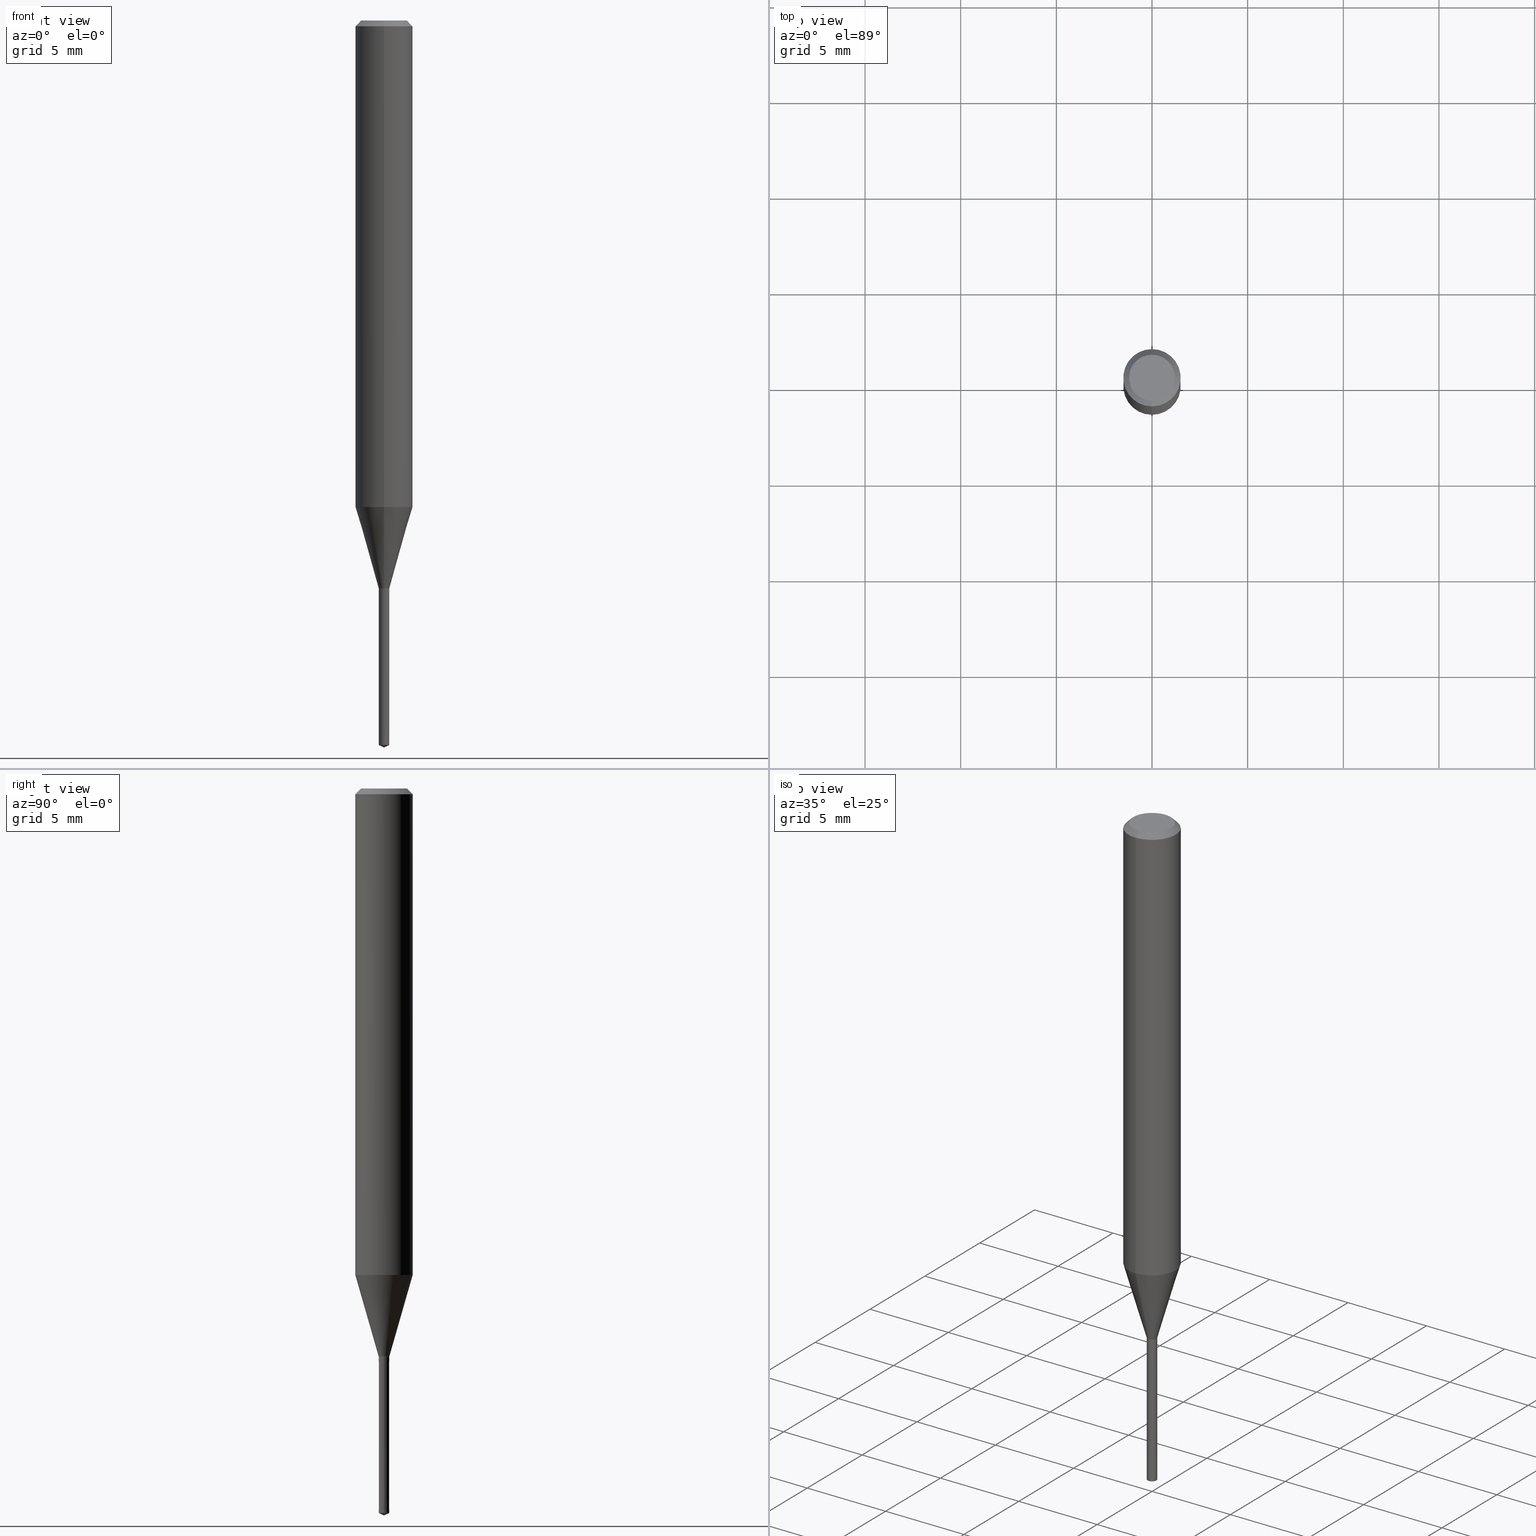
[diagram: canonical four-view strip — front | top / right | iso, engineering-drawing reading convention]
A machine part, canonical four-view strip (front | top / right | iso — engineering-drawing reading convention). The complete STEP part file that produces these views, byte-faithful:
ISO-10303-21;
HEADER;
FILE_DESCRIPTION(('no description'),'unknown implementation level');
FILE_NAME('UTDLX2055-083-Huellk.stp','  ',('CIMSOURCE GmbH'),('CADClick - KiM GmbH - www.kimweb.de'),'unknown preprocess','ACIS','unknown authorization');
FILE_SCHEMA(('automotive_design'));
ENDSEC;
DATA;
#1=MECHANICAL_DESIGN_GEOMETRIC_PRESENTATION_REPRESENTATION(' ',(#14,#15,#16,#17,#18,#19,#20,#21,#22,#23,#24,#25,#26,#27,#28,#29,#30,#31,#32,#33,#34,#35,#36,#37,#38,#39,#40,#41,#42,#43,#44,#45,#46,#47,#48,#49,#50,#51,#52,#53,#54,#55,#56,#57,#58,#59,#60,#61,#62,#63,#64,#65,#66,#67,#68,#69,#70,#71),#10);
#2=PRODUCT_DEFINITION_CONTEXT('',#72,'design');
#3=APPLICATION_PROTOCOL_DEFINITION('INTERNATIONAL STANDARD','automotive_design',1994,#72);
#4=PRODUCT_CATEGORY_RELATIONSHIP('NONE','NONE',#73,#74);
#5=SHAPE_DEFINITION_REPRESENTATION(#75,#76);
#6=PRODUCT_DEFINITION_CONTEXT('',#77,'design');
#7=APPLICATION_PROTOCOL_DEFINITION('INTERNATIONAL STANDARD','automotive_design',1994,#77);
#8=PRODUCT_CATEGORY_RELATIONSHIP('NONE','NONE',#78,#79);
#9=SHAPE_DEFINITION_REPRESENTATION(#80,#81);
#10= (GEOMETRIC_REPRESENTATION_CONTEXT(3)GLOBAL_UNCERTAINTY_ASSIGNED_CONTEXT((#84))GLOBAL_UNIT_ASSIGNED_CONTEXT((#86,#87,#88))REPRESENTATION_CONTEXT('NONE','WORKSPACE'));
#14=STYLED_ITEM('',(#90),#91);
#15=STYLED_ITEM('',(#92),#93);
#16=STYLED_ITEM('',(#94),#95);
#17=STYLED_ITEM('',(#96),#97);
#18=STYLED_ITEM('',(#98),#99);
#19=STYLED_ITEM('',(#100),#101);
#20=STYLED_ITEM('',(#102),#103);
#21=STYLED_ITEM('',(#104),#105);
#22=STYLED_ITEM('',(#106),#107);
#23=STYLED_ITEM('',(#108),#109);
#24=STYLED_ITEM('',(#110),#111);
#25=STYLED_ITEM('',(#112),#113);
#26=STYLED_ITEM('',(#114),#115);
#27=STYLED_ITEM('',(#116),#117);
#28=STYLED_ITEM('',(#118),#119);
#29=STYLED_ITEM('',(#120),#121);
#30=STYLED_ITEM('',(#122),#123);
#31=STYLED_ITEM('',(#124),#125);
#32=STYLED_ITEM('',(#126),#127);
#33=STYLED_ITEM('',(#128),#129);
#34=STYLED_ITEM('',(#130),#131);
#35=STYLED_ITEM('',(#132),#133);
#36=STYLED_ITEM('',(#134),#135);
#37=STYLED_ITEM('',(#136),#137);
#38=STYLED_ITEM('',(#138),#139);
#39=STYLED_ITEM('',(#140),#141);
#40=STYLED_ITEM('',(#142),#143);
#41=STYLED_ITEM('',(#144),#145);
#42=STYLED_ITEM('',(#146),#147);
#43=STYLED_ITEM('',(#148),#149);
#44=STYLED_ITEM('',(#150),#151);
#45=STYLED_ITEM('',(#152),#153);
#46=STYLED_ITEM('',(#154),#155);
#47=STYLED_ITEM('',(#156),#157);
#48=STYLED_ITEM('',(#158),#159);
#49=STYLED_ITEM('',(#160),#161);
#50=STYLED_ITEM('',(#162),#163);
#51=STYLED_ITEM('',(#164),#165);
#52=STYLED_ITEM('',(#166),#167);
#53=STYLED_ITEM('',(#168),#169);
#54=STYLED_ITEM('',(#170),#171);
#55=STYLED_ITEM('',(#172),#173);
#56=STYLED_ITEM('',(#174),#175);
#57=STYLED_ITEM('',(#176),#177);
#58=STYLED_ITEM('',(#178),#179);
#59=STYLED_ITEM('',(#180),#181);
#60=STYLED_ITEM('',(#182),#183);
#61=STYLED_ITEM('',(#184),#185);
#62=STYLED_ITEM('',(#186),#187);
#63=STYLED_ITEM('',(#188),#189);
#64=STYLED_ITEM('',(#190),#191);
#65=STYLED_ITEM('',(#192),#193);
#66=STYLED_ITEM('',(#194),#195);
#67=STYLED_ITEM('',(#196),#197);
#68=STYLED_ITEM('',(#198),#199);
#69=STYLED_ITEM('',(#200),#201);
#70=STYLED_ITEM('',(#202),#203);
#71=STYLED_ITEM('',(#204),#205);
#72=APPLICATION_CONTEXT(' ');
#73=PRODUCT_CATEGORY('part','NONE');
#74=PRODUCT_RELATED_PRODUCT_CATEGORY('detail',' ',(#206));
#75=PRODUCT_DEFINITION_SHAPE('NONE','NONE',#207);
#76=ADVANCED_BREP_SHAPE_REPRESENTATION('1',(#111,#208),#10);
#77=APPLICATION_CONTEXT(' ');
#78=PRODUCT_CATEGORY('part','NONE');
#79=PRODUCT_RELATED_PRODUCT_CATEGORY('detail',' ',(#209));
#80=PRODUCT_DEFINITION_SHAPE('NONE','NONE',#210);
#81=ADVANCED_BREP_SHAPE_REPRESENTATION('2',(#187,#211),#10);
#84=UNCERTAINTY_MEASURE_WITH_UNIT(LENGTH_MEASURE(1.0E-006),#86,'','');
#86= (CONVERSION_BASED_UNIT('MILLIMETRE',#214)LENGTH_UNIT()NAMED_UNIT(#217));
#87= (NAMED_UNIT(#219)PLANE_ANGLE_UNIT()SI_UNIT($,.RADIAN.));
#88= (NAMED_UNIT(#219)SOLID_ANGLE_UNIT()SI_UNIT($,.STERADIAN.));
#90=PRESENTATION_STYLE_ASSIGNMENT((#225));
#91=EDGE_CURVE('',#117,#145,#226,.T.);
#92=PRESENTATION_STYLE_ASSIGNMENT((#227));
#93=EDGE_CURVE('',#167,#203,#228,.T.);
#94=PRESENTATION_STYLE_ASSIGNMENT((#229));
#95=EDGE_CURVE('',#139,#105,#230,.T.);
#96=PRESENTATION_STYLE_ASSIGNMENT((#231));
#97=EDGE_CURVE('',#159,#121,#232,.T.);
#98=PRESENTATION_STYLE_ASSIGNMENT((#233));
#99=EDGE_CURVE('',#115,#167,#234,.T.);
#100=PRESENTATION_STYLE_ASSIGNMENT((#235));
#101=VERTEX_POINT('',#236);
#102=PRESENTATION_STYLE_ASSIGNMENT((#237));
#103=EDGE_CURVE('',#115,#151,#238,.T.);
#104=PRESENTATION_STYLE_ASSIGNMENT((#239));
#105=VERTEX_POINT('',#240);
#106=PRESENTATION_STYLE_ASSIGNMENT((#241));
#107=EDGE_CURVE('',#203,#151,#242,.T.);
#108=PRESENTATION_STYLE_ASSIGNMENT((#243));
#109=EDGE_CURVE('',#193,#159,#244,.T.);
#110=PRESENTATION_STYLE_ASSIGNMENT((#245));
#111=MANIFOLD_SOLID_BREP('1',#246);
#112=PRESENTATION_STYLE_ASSIGNMENT((#247));
#113=EDGE_CURVE('',#121,#193,#248,.T.);
#114=PRESENTATION_STYLE_ASSIGNMENT((#249));
#115=VERTEX_POINT('',#250);
#116=PRESENTATION_STYLE_ASSIGNMENT((#251));
#117=VERTEX_POINT('',#252);
#118=PRESENTATION_STYLE_ASSIGNMENT((#253));
#119=ADVANCED_FACE('',(#254),#255,.T.);
#120=PRESENTATION_STYLE_ASSIGNMENT((#256));
#121=VERTEX_POINT('',#257);
#122=PRESENTATION_STYLE_ASSIGNMENT((#258));
#123=ADVANCED_FACE('',(#259),#260,.T.);
#124=PRESENTATION_STYLE_ASSIGNMENT((#261));
#125=EDGE_CURVE('',#101,#177,#262,.T.);
#126=PRESENTATION_STYLE_ASSIGNMENT((#263));
#127=ADVANCED_FACE('',(#264),#265,.T.);
#128=PRESENTATION_STYLE_ASSIGNMENT((#266));
#129=VERTEX_POINT('',#267);
#130=PRESENTATION_STYLE_ASSIGNMENT((#268));
#131=EDGE_CURVE('',#121,#159,#269,.T.);
#132=PRESENTATION_STYLE_ASSIGNMENT((#270));
#133=EDGE_CURVE('',#177,#189,#271,.T.);
#134=PRESENTATION_STYLE_ASSIGNMENT((#272));
#135=EDGE_CURVE('',#129,#145,#273,.T.);
#136=PRESENTATION_STYLE_ASSIGNMENT((#274));
#137=EDGE_CURVE('',#105,#139,#275,.T.);
#138=PRESENTATION_STYLE_ASSIGNMENT((#276));
#139=VERTEX_POINT('',#277);
#140=PRESENTATION_STYLE_ASSIGNMENT((#278));
#141=EDGE_CURVE('',#145,#203,#279,.T.);
#142=PRESENTATION_STYLE_ASSIGNMENT((#280));
#143=ADVANCED_FACE('',(#281),#282,.T.);
#144=PRESENTATION_STYLE_ASSIGNMENT((#283));
#145=VERTEX_POINT('',#284);
#146=PRESENTATION_STYLE_ASSIGNMENT((#285));
#147=ADVANCED_FACE('',(#286),#287,.T.);
#148=PRESENTATION_STYLE_ASSIGNMENT((#288));
#149=EDGE_CURVE('',#159,#139,#289,.T.);
#150=PRESENTATION_STYLE_ASSIGNMENT((#290));
#151=VERTEX_POINT('',#291);
#152=PRESENTATION_STYLE_ASSIGNMENT((#292));
#153=EDGE_CURVE('',#189,#117,#293,.T.);
#154=PRESENTATION_STYLE_ASSIGNMENT((#294));
#155=EDGE_CURVE('',#105,#121,#295,.T.);
#156=PRESENTATION_STYLE_ASSIGNMENT((#296));
#157=ADVANCED_FACE('',(#297),#298,.T.);
#158=PRESENTATION_STYLE_ASSIGNMENT((#299));
#159=VERTEX_POINT('',#300);
#160=PRESENTATION_STYLE_ASSIGNMENT((#301));
#161=EDGE_CURVE('',#117,#101,#302,.T.);
#162=PRESENTATION_STYLE_ASSIGNMENT((#303));
#163=EDGE_CURVE('',#145,#129,#304,.T.);
#164=PRESENTATION_STYLE_ASSIGNMENT((#305));
#165=ADVANCED_FACE('',(#306),#307,.T.);
#166=PRESENTATION_STYLE_ASSIGNMENT((#308));
#167=VERTEX_POINT('',#309);
#168=PRESENTATION_STYLE_ASSIGNMENT((#310));
#169=EDGE_CURVE('',#151,#115,#311,.T.);
#170=PRESENTATION_STYLE_ASSIGNMENT((#312));
#171=ADVANCED_FACE('',(#313),#314,.T.);
#172=PRESENTATION_STYLE_ASSIGNMENT((#315));
#173=EDGE_CURVE('',#129,#101,#316,.T.);
#174=PRESENTATION_STYLE_ASSIGNMENT((#317));
#175=ADVANCED_FACE('',(#318),#319,.T.);
#176=PRESENTATION_STYLE_ASSIGNMENT((#320));
#177=VERTEX_POINT('',#321);
#178=PRESENTATION_STYLE_ASSIGNMENT((#322));
#179=ADVANCED_FACE('',(#323),#324,.T.);
#180=PRESENTATION_STYLE_ASSIGNMENT((#325));
#181=ADVANCED_FACE('',(#326),#327,.T.);
#182=PRESENTATION_STYLE_ASSIGNMENT((#328));
#183=EDGE_CURVE('',#167,#129,#329,.T.);
#184=PRESENTATION_STYLE_ASSIGNMENT((#330));
#185=ADVANCED_FACE('',(#331),#332,.T.);
#186=PRESENTATION_STYLE_ASSIGNMENT((#333));
#187=MANIFOLD_SOLID_BREP('2',#334);
#188=PRESENTATION_STYLE_ASSIGNMENT((#335));
#189=VERTEX_POINT('',#336);
#190=PRESENTATION_STYLE_ASSIGNMENT((#337));
#191=ADVANCED_FACE('',(#338),#339,.T.);
#192=PRESENTATION_STYLE_ASSIGNMENT((#340));
#193=VERTEX_POINT('',#341);
#194=PRESENTATION_STYLE_ASSIGNMENT((#342));
#195=ADVANCED_FACE('',(#343),#344,.T.);
#196=PRESENTATION_STYLE_ASSIGNMENT((#345));
#197=ADVANCED_FACE('',(#346),#347,.T.);
#198=PRESENTATION_STYLE_ASSIGNMENT((#348));
#199=EDGE_CURVE('',#101,#117,#349,.T.);
#200=PRESENTATION_STYLE_ASSIGNMENT((#350));
#201=EDGE_CURVE('',#189,#177,#351,.T.);
#202=PRESENTATION_STYLE_ASSIGNMENT((#352));
#203=VERTEX_POINT('',#353);
#204=PRESENTATION_STYLE_ASSIGNMENT((#354));
#205=EDGE_CURVE('',#203,#167,#355,.T.);
#206=PRODUCT('1','1','PART-1-DESC',(#356));
#207=PRODUCT_DEFINITION('NONE','NONE',#357,#2);
#208=AXIS2_PLACEMENT_3D('',#358,#359,#360);
#209=PRODUCT('2','2','PART-2-DESC',(#361));
#210=PRODUCT_DEFINITION('NONE','NONE',#362,#6);
#211=AXIS2_PLACEMENT_3D('',#363,#364,#365);
#214=LENGTH_MEASURE_WITH_UNIT(LENGTH_MEASURE(1.0),#366);
#217=DIMENSIONAL_EXPONENTS(1.0,0.0,0.0,0.0,0.0,0.0,0.0);
#219=DIMENSIONAL_EXPONENTS(0.0,0.0,0.0,0.0,0.0,0.0,0.0);
#225=CURVE_STYLE('',#367,POSITIVE_LENGTH_MEASURE(1.0E-006),#368);
#226=LINE('',#369,#370);
#227=CURVE_STYLE('',#371,POSITIVE_LENGTH_MEASURE(1.0E-006),#372);
#228=CIRCLE('',#373,0.275);
#229=CURVE_STYLE('',#374,POSITIVE_LENGTH_MEASURE(1.0E-006),#375);
#230=CIRCLE('',#376,0.276);
#231=CURVE_STYLE('',#377,POSITIVE_LENGTH_MEASURE(1.0E-006),#378);
#232=CIRCLE('',#379,0.275);
#233=CURVE_STYLE('',#380,POSITIVE_LENGTH_MEASURE(1.0E-006),#381);
#234=LINE('',#382,#383);
#235=POINT_STYLE(' ',#384,POSITIVE_LENGTH_MEASURE(1.0E-006),#385);
#236=CARTESIAN_POINT('',(1.83690953073357E-016,-1.5,-0.300000000000001));
#237=CURVE_STYLE('',#386,POSITIVE_LENGTH_MEASURE(1.0E-006),#387);
#238=CIRCLE('',#388,0.2755);
#239=POINT_STYLE(' ',#389,POSITIVE_LENGTH_MEASURE(1.0E-006),#390);
#240=CARTESIAN_POINT('',(-0.276,0.0,-29.7));
#241=CURVE_STYLE('',#391,POSITIVE_LENGTH_MEASURE(1.0E-006),#392);
#242=LINE('',#393,#394);
#243=CURVE_STYLE('',#395,POSITIVE_LENGTH_MEASURE(1.0E-006),#396);
#244=LINE('',#397,#398);
#245=SURFACE_STYLE_USAGE(.BOTH.,#399);
#246=CLOSED_SHELL('',(#165,#127,#119,#171,#175,#147,#179,#195,#181,#123));
#247=CURVE_STYLE('',#400,POSITIVE_LENGTH_MEASURE(1.0E-006),#401);
#248=LINE('',#402,#403);
#249=POINT_STYLE(' ',#404,POSITIVE_LENGTH_MEASURE(1.0E-006),#405);
#250=CARTESIAN_POINT('',(3.37379050478065E-017,-0.2755,-29.7));
#251=POINT_STYLE(' ',#406,POSITIVE_LENGTH_MEASURE(1.0E-006),#407);
#252=CARTESIAN_POINT('',(0.0,1.5,-0.300000000000001));
#253=SURFACE_STYLE_USAGE(.BOTH.,#408);
#254=FACE_OUTER_BOUND('',#409,.T.);
#255=CYLINDRICAL_SURFACE('',#410,1.5);
#256=POINT_STYLE(' ',#411,POSITIVE_LENGTH_MEASURE(1.0E-006),#412);
#257=CARTESIAN_POINT('',(-0.275,0.0,-37.87176539));
#258=SURFACE_STYLE_USAGE(.BOTH.,#413);
#259=FACE_OUTER_BOUND('',#414,.T.);
#260=PLANE('',#415);
#261=CURVE_STYLE('',#416,POSITIVE_LENGTH_MEASURE(1.0E-006),#417);
#262=LINE('',#418,#419);
#263=SURFACE_STYLE_USAGE(.BOTH.,#420);
#264=FACE_OUTER_BOUND('',#421,.T.);
#265=CONICAL_SURFACE('',#422,0.8875,0.279311533079316);
#266=POINT_STYLE(' ',#423,POSITIVE_LENGTH_MEASURE(1.0E-006),#424);
#267=CARTESIAN_POINT('',(1.83690953073357E-016,-1.5,-25.428));
#268=CURVE_STYLE('',#425,POSITIVE_LENGTH_MEASURE(1.0E-006),#426);
#269=CIRCLE('',#427,0.275);
#270=CURVE_STYLE('',#428,POSITIVE_LENGTH_MEASURE(1.0E-006),#429);
#271=CIRCLE('',#430,1.2);
#272=CURVE_STYLE('',#431,POSITIVE_LENGTH_MEASURE(1.0E-006),#432);
#273=CIRCLE('',#433,1.5);
#274=CURVE_STYLE('',#434,POSITIVE_LENGTH_MEASURE(1.0E-006),#435);
#275=CIRCLE('',#436,0.276);
#276=POINT_STYLE(' ',#437,POSITIVE_LENGTH_MEASURE(1.0E-006),#438);
#277=CARTESIAN_POINT('',(0.276,3.37991353654976E-017,-29.7));
#278=CURVE_STYLE('',#439,POSITIVE_LENGTH_MEASURE(1.0E-006),#440);
#279=LINE('',#441,#442);
#280=SURFACE_STYLE_USAGE(.BOTH.,#443);
#281=FACE_OUTER_BOUND('',#444,.T.);
#282=PLANE('',#445);
#283=POINT_STYLE(' ',#446,POSITIVE_LENGTH_MEASURE(1.0E-006),#447);
#284=CARTESIAN_POINT('',(0.0,1.5,-25.428));
#285=SURFACE_STYLE_USAGE(.BOTH.,#448);
#286=FACE_OUTER_BOUND('',#449,.T.);
#287=CONICAL_SURFACE('',#450,1.35,0.785398163397447);
#288=CURVE_STYLE('',#451,POSITIVE_LENGTH_MEASURE(1.0E-006),#452);
#289=LINE('',#453,#454);
#290=POINT_STYLE(' ',#455,POSITIVE_LENGTH_MEASURE(1.0E-006),#456);
#291=CARTESIAN_POINT('',(0.0,0.2755,-29.7));
#292=CURVE_STYLE('',#457,POSITIVE_LENGTH_MEASURE(1.0E-006),#458);
#293=LINE('',#459,#460);
#294=CURVE_STYLE('',#461,POSITIVE_LENGTH_MEASURE(1.0E-006),#462);
#295=LINE('',#463,#464);
#296=SURFACE_STYLE_USAGE(.BOTH.,#465);
#297=FACE_OUTER_BOUND('',#466,.T.);
#298=CONICAL_SURFACE('',#467,0.2755,0.000122372577684627);
#299=POINT_STYLE(' ',#468,POSITIVE_LENGTH_MEASURE(1.0E-006),#469);
#300=CARTESIAN_POINT('',(0.275,3.36766747301154E-017,-37.87176539));
#301=CURVE_STYLE('',#470,POSITIVE_LENGTH_MEASURE(1.0E-006),#471);
#302=CIRCLE('',#472,1.5);
#303=CURVE_STYLE('',#473,POSITIVE_LENGTH_MEASURE(1.0E-006),#474);
#304=CIRCLE('',#475,1.5);
#305=SURFACE_STYLE_USAGE(.BOTH.,#476);
#306=FACE_OUTER_BOUND('',#477,.T.);
#307=CONICAL_SURFACE('',#478,0.27525,0.523598775598408);
#308=POINT_STYLE(' ',#479,POSITIVE_LENGTH_MEASURE(1.0E-006),#480);
#309=CARTESIAN_POINT('',(3.36766747301154E-017,-0.275,-29.6991339745962));
#310=CURVE_STYLE('',#481,POSITIVE_LENGTH_MEASURE(1.0E-006),#482);
#311=CIRCLE('',#483,0.2755);
#312=SURFACE_STYLE_USAGE(.BOTH.,#484);
#313=FACE_OUTER_BOUND('',#485,.T.);
#314=CONICAL_SURFACE('',#486,1.35,0.785398163397447);
#315=CURVE_STYLE('',#487,POSITIVE_LENGTH_MEASURE(1.0E-006),#488);
#316=LINE('',#489,#490);
#317=SURFACE_STYLE_USAGE(.BOTH.,#491);
#318=FACE_OUTER_BOUND('',#492,.T.);
#319=PLANE('',#493);
#320=POINT_STYLE(' ',#494,POSITIVE_LENGTH_MEASURE(1.0E-006),#495);
#321=CARTESIAN_POINT('',(1.46952762458685E-016,-1.2,0.0));
#322=SURFACE_STYLE_USAGE(.BOTH.,#496);
#323=FACE_OUTER_BOUND('',#497,.T.);
#324=CYLINDRICAL_SURFACE('',#498,1.5);
#325=SURFACE_STYLE_USAGE(.BOTH.,#499);
#326=FACE_OUTER_BOUND('',#500,.T.);
#327=CONICAL_SURFACE('',#501,0.27525,0.523598775598408);
#328=CURVE_STYLE('',#502,POSITIVE_LENGTH_MEASURE(1.0E-006),#503);
#329=LINE('',#504,#505);
#330=SURFACE_STYLE_USAGE(.BOTH.,#506);
#331=FACE_OUTER_BOUND('',#507,.T.);
#332=CONICAL_SURFACE('',#508,0.2755,0.000122372577684627);
#333=SURFACE_STYLE_USAGE(.BOTH.,#509);
#334=CLOSED_SHELL('',(#191,#185,#143,#157,#197));
#335=POINT_STYLE(' ',#510,POSITIVE_LENGTH_MEASURE(1.0E-006),#511);
#336=CARTESIAN_POINT('',(0.0,1.2,0.0));
#337=SURFACE_STYLE_USAGE(.BOTH.,#512);
#338=FACE_OUTER_BOUND('',#513,.T.);
#339=CONICAL_SURFACE('',#514,0.1375,1.13446400182674);
#340=POINT_STYLE(' ',#515,POSITIVE_LENGTH_MEASURE(1.0E-006),#516);
#341=CARTESIAN_POINT('',(0.0,0.0,-38.0));
#342=SURFACE_STYLE_USAGE(.BOTH.,#517);
#343=FACE_OUTER_BOUND('',#518,.T.);
#344=CONICAL_SURFACE('',#519,0.8875,0.279311533079316);
#345=SURFACE_STYLE_USAGE(.BOTH.,#520);
#346=FACE_OUTER_BOUND('',#521,.T.);
#347=CONICAL_SURFACE('',#522,0.1375,1.13446400182674);
#348=CURVE_STYLE('',#523,POSITIVE_LENGTH_MEASURE(1.0E-006),#524);
#349=CIRCLE('',#525,1.5);
#350=CURVE_STYLE('',#526,POSITIVE_LENGTH_MEASURE(1.0E-006),#527);
#351=CIRCLE('',#528,1.2);
#352=POINT_STYLE(' ',#529,POSITIVE_LENGTH_MEASURE(1.0E-006),#530);
#353=CARTESIAN_POINT('',(0.0,0.275,-29.6991339745962));
#354=CURVE_STYLE('',#531,POSITIVE_LENGTH_MEASURE(1.0E-006),#532);
#355=CIRCLE('',#533,0.275);
#356=PRODUCT_CONTEXT('',#72,'mechanical');
#357=PRODUCT_DEFINITION_FORMATION_WITH_SPECIFIED_SOURCE(' ','NONE',#206,.NOT_KNOWN.);
#358=CARTESIAN_POINT('',(0.0,0.0,0.0));
#359=DIRECTION('',(0.0,0.0,1.0));
#360=DIRECTION('',(1.0,0.0,0.0));
#361=PRODUCT_CONTEXT('',#77,'mechanical');
#362=PRODUCT_DEFINITION_FORMATION_WITH_SPECIFIED_SOURCE(' ','NONE',#209,.NOT_KNOWN.);
#363=CARTESIAN_POINT('',(0.0,0.0,0.0));
#364=DIRECTION('',(0.0,0.0,1.0));
#365=DIRECTION('',(1.0,0.0,0.0));
#366= (NAMED_UNIT(#217)LENGTH_UNIT()SI_UNIT(.MILLI.,.METRE.));
#367=DRAUGHTING_PRE_DEFINED_CURVE_FONT('continuous');
#368=COLOUR_RGB('',0.498039215803146,0.498039215803146,0.498039215803146);
#369=CARTESIAN_POINT('',(-1.83690953073357E-016,1.5,-12.864));
#370=VECTOR('',#535,1.0);
#371=DRAUGHTING_PRE_DEFINED_CURVE_FONT('continuous');
#372=COLOUR_RGB('',0.498039215803146,0.498039215803146,0.498039215803146);
#373=AXIS2_PLACEMENT_3D('',#536,#537,#538);
#374=DRAUGHTING_PRE_DEFINED_CURVE_FONT('continuous');
#375=COLOUR_RGB('',0.800000011920929,0.800000011920929,0.800000011920929);
#376=AXIS2_PLACEMENT_3D('',#539,#540,#541);
#377=DRAUGHTING_PRE_DEFINED_CURVE_FONT('continuous');
#378=COLOUR_RGB('',0.800000011920929,0.800000011920929,0.800000011920929);
#379=AXIS2_PLACEMENT_3D('',#542,#543,#544);
#380=DRAUGHTING_PRE_DEFINED_CURVE_FONT('continuous');
#381=COLOUR_RGB('',0.498039215803146,0.498039215803146,0.498039215803146);
#382=CARTESIAN_POINT('',(3.37072898889609E-017,-0.27525,-29.6995669872981));
#383=VECTOR('',#545,1.0);
#384=PRE_DEFINED_MARKER('');
#385=COLOUR_RGB('',0.498039215803146,0.498039215803146,0.498039215803146);
#386=DRAUGHTING_PRE_DEFINED_CURVE_FONT('continuous');
#387=COLOUR_RGB('',0.498039215803146,0.498039215803146,0.498039215803146);
#388=AXIS2_PLACEMENT_3D('',#546,#547,#548);
#389=PRE_DEFINED_MARKER('');
#390=COLOUR_RGB('',0.800000011920929,0.800000011920929,0.800000011920929);
#391=DRAUGHTING_PRE_DEFINED_CURVE_FONT('continuous');
#392=COLOUR_RGB('',0.498039215803146,0.498039215803146,0.498039215803146);
#393=CARTESIAN_POINT('',(-3.37072898889609E-017,0.27525,-29.6995669872981));
#394=VECTOR('',#549,1.0);
#395=DRAUGHTING_PRE_DEFINED_CURVE_FONT('continuous');
#396=COLOUR_RGB('',0.800000011920929,0.800000011920929,0.800000011920929);
#397=CARTESIAN_POINT('',(0.1375,1.68383373650577E-017,-37.935882695));
#398=VECTOR('',#550,1.0);
#399=SURFACE_SIDE_STYLE('',(#551));
#400=DRAUGHTING_PRE_DEFINED_CURVE_FONT('continuous');
#401=COLOUR_RGB('',0.800000011920929,0.800000011920929,0.800000011920929);
#402=CARTESIAN_POINT('',(-0.1375,-1.68383373650577E-017,-37.935882695));
#403=VECTOR('',#552,1.0);
#404=PRE_DEFINED_MARKER('');
#405=COLOUR_RGB('',0.498039215803146,0.498039215803146,0.498039215803146);
#406=PRE_DEFINED_MARKER('');
#407=COLOUR_RGB('',0.498039215803146,0.498039215803146,0.498039215803146);
#408=SURFACE_SIDE_STYLE('',(#553));
#409=EDGE_LOOP('',(#554,#555,#556,#557));
#410=AXIS2_PLACEMENT_3D('',#558,#559,#560);
#411=PRE_DEFINED_MARKER('');
#412=COLOUR_RGB('',0.800000011920929,0.800000011920929,0.800000011920929);
#413=SURFACE_SIDE_STYLE('',(#561));
#414=EDGE_LOOP('',(#562,#563));
#415=AXIS2_PLACEMENT_3D('',#564,#565,#566);
#416=DRAUGHTING_PRE_DEFINED_CURVE_FONT('continuous');
#417=COLOUR_RGB('',0.498039215803146,0.498039215803146,0.498039215803146);
#418=CARTESIAN_POINT('',(1.65321857766021E-016,-1.35,-0.150000000000002));
#419=VECTOR('',#567,1.0);
#420=SURFACE_SIDE_STYLE('',(#568));
#421=EDGE_LOOP('',(#569,#570,#571,#572));
#422=AXIS2_PLACEMENT_3D('',#573,#574,#575);
#423=PRE_DEFINED_MARKER('');
#424=COLOUR_RGB('',0.498039215803146,0.498039215803146,0.498039215803146);
#425=DRAUGHTING_PRE_DEFINED_CURVE_FONT('continuous');
#426=COLOUR_RGB('',0.800000011920929,0.800000011920929,0.800000011920929);
#427=AXIS2_PLACEMENT_3D('',#576,#577,#578);
#428=DRAUGHTING_PRE_DEFINED_CURVE_FONT('continuous');
#429=COLOUR_RGB('',0.498039215803146,0.498039215803146,0.498039215803146);
#430=AXIS2_PLACEMENT_3D('',#579,#580,#581);
#431=DRAUGHTING_PRE_DEFINED_CURVE_FONT('continuous');
#432=COLOUR_RGB('',0.498039215803146,0.498039215803146,0.498039215803146);
#433=AXIS2_PLACEMENT_3D('',#582,#583,#584);
#434=DRAUGHTING_PRE_DEFINED_CURVE_FONT('continuous');
#435=COLOUR_RGB('',0.800000011920929,0.800000011920929,0.800000011920929);
#436=AXIS2_PLACEMENT_3D('',#585,#586,#587);
#437=PRE_DEFINED_MARKER('');
#438=COLOUR_RGB('',0.800000011920929,0.800000011920929,0.800000011920929);
#439=DRAUGHTING_PRE_DEFINED_CURVE_FONT('continuous');
#440=COLOUR_RGB('',0.498039215803146,0.498039215803146,0.498039215803146);
#441=CARTESIAN_POINT('',(-1.08683813901736E-016,0.8875,-27.5635669872981));
#442=VECTOR('',#588,1.0);
#443=SURFACE_SIDE_STYLE('',(#589));
#444=EDGE_LOOP('',(#590,#591));
#445=AXIS2_PLACEMENT_3D('',#592,#593,#594);
#446=PRE_DEFINED_MARKER('');
#447=COLOUR_RGB('',0.498039215803146,0.498039215803146,0.498039215803146);
#448=SURFACE_SIDE_STYLE('',(#595));
#449=EDGE_LOOP('',(#596,#597,#598,#599));
#450=AXIS2_PLACEMENT_3D('',#600,#601,#602);
#451=DRAUGHTING_PRE_DEFINED_CURVE_FONT('continuous');
#452=COLOUR_RGB('',0.800000011920929,0.800000011920929,0.800000011920929);
#453=CARTESIAN_POINT('',(0.2755,3.37379050478065E-017,-33.785882695));
#454=VECTOR('',#603,1.0);
#455=PRE_DEFINED_MARKER('');
#456=COLOUR_RGB('',0.498039215803146,0.498039215803146,0.498039215803146);
#457=DRAUGHTING_PRE_DEFINED_CURVE_FONT('continuous');
#458=COLOUR_RGB('',0.498039215803146,0.498039215803146,0.498039215803146);
#459=CARTESIAN_POINT('',(-1.65321857766021E-016,1.35,-0.150000000000002));
#460=VECTOR('',#604,1.0);
#461=DRAUGHTING_PRE_DEFINED_CURVE_FONT('continuous');
#462=COLOUR_RGB('',0.800000011920929,0.800000011920929,0.800000011920929);
#463=CARTESIAN_POINT('',(-0.2755,-3.37379050478065E-017,-33.785882695));
#464=VECTOR('',#605,1.0);
#465=SURFACE_SIDE_STYLE('',(#606));
#466=EDGE_LOOP('',(#607,#608,#609,#610));
#467=AXIS2_PLACEMENT_3D('',#611,#612,#613);
#468=PRE_DEFINED_MARKER('');
#469=COLOUR_RGB('',0.800000011920929,0.800000011920929,0.800000011920929);
#470=DRAUGHTING_PRE_DEFINED_CURVE_FONT('continuous');
#471=COLOUR_RGB('',0.498039215803146,0.498039215803146,0.498039215803146);
#472=AXIS2_PLACEMENT_3D('',#614,#615,#616);
#473=DRAUGHTING_PRE_DEFINED_CURVE_FONT('continuous');
#474=COLOUR_RGB('',0.498039215803146,0.498039215803146,0.498039215803146);
#475=AXIS2_PLACEMENT_3D('',#617,#618,#619);
#476=SURFACE_SIDE_STYLE('',(#620));
#477=EDGE_LOOP('',(#621,#622,#623,#624));
#478=AXIS2_PLACEMENT_3D('',#625,#626,#627);
#479=PRE_DEFINED_MARKER('');
#480=COLOUR_RGB('',0.498039215803146,0.498039215803146,0.498039215803146);
#481=DRAUGHTING_PRE_DEFINED_CURVE_FONT('continuous');
#482=COLOUR_RGB('',0.498039215803146,0.498039215803146,0.498039215803146);
#483=AXIS2_PLACEMENT_3D('',#628,#629,#630);
#484=SURFACE_SIDE_STYLE('',(#631));
#485=EDGE_LOOP('',(#632,#633,#634,#635));
#486=AXIS2_PLACEMENT_3D('',#636,#637,#638);
#487=DRAUGHTING_PRE_DEFINED_CURVE_FONT('continuous');
#488=COLOUR_RGB('',0.498039215803146,0.498039215803146,0.498039215803146);
#489=CARTESIAN_POINT('',(1.83690953073357E-016,-1.5,-12.864));
#490=VECTOR('',#639,1.0);
#491=SURFACE_SIDE_STYLE('',(#640));
#492=EDGE_LOOP('',(#641,#642));
#493=AXIS2_PLACEMENT_3D('',#643,#644,#645);
#494=PRE_DEFINED_MARKER('');
#495=COLOUR_RGB('',0.498039215803146,0.498039215803146,0.498039215803146);
#496=SURFACE_SIDE_STYLE('',(#646));
#497=EDGE_LOOP('',(#647,#648,#649,#650));
#498=AXIS2_PLACEMENT_3D('',#651,#652,#653);
#499=SURFACE_SIDE_STYLE('',(#654));
#500=EDGE_LOOP('',(#655,#656,#657,#658));
#501=AXIS2_PLACEMENT_3D('',#659,#660,#661);
#502=DRAUGHTING_PRE_DEFINED_CURVE_FONT('continuous');
#503=COLOUR_RGB('',0.498039215803146,0.498039215803146,0.498039215803146);
#504=CARTESIAN_POINT('',(1.08683813901736E-016,-0.8875,-27.5635669872981));
#505=VECTOR('',#662,1.0);
#506=SURFACE_SIDE_STYLE('',(#663));
#507=EDGE_LOOP('',(#664,#665,#666,#667));
#508=AXIS2_PLACEMENT_3D('',#668,#669,#670);
#509=SURFACE_SIDE_STYLE('',(#671));
#510=PRE_DEFINED_MARKER('');
#511=COLOUR_RGB('',0.498039215803146,0.498039215803146,0.498039215803146);
#512=SURFACE_SIDE_STYLE('',(#672));
#513=EDGE_LOOP('',(#673,#674,#675));
#514=AXIS2_PLACEMENT_3D('',#676,#677,#678);
#515=PRE_DEFINED_MARKER('');
#516=COLOUR_RGB('',0.800000011920929,0.800000011920929,0.800000011920929);
#517=SURFACE_SIDE_STYLE('',(#679));
#518=EDGE_LOOP('',(#680,#681,#682,#683));
#519=AXIS2_PLACEMENT_3D('',#684,#685,#686);
#520=SURFACE_SIDE_STYLE('',(#687));
#521=EDGE_LOOP('',(#688,#689,#690));
#522=AXIS2_PLACEMENT_3D('',#691,#692,#693);
#523=DRAUGHTING_PRE_DEFINED_CURVE_FONT('continuous');
#524=COLOUR_RGB('',0.498039215803146,0.498039215803146,0.498039215803146);
#525=AXIS2_PLACEMENT_3D('',#694,#695,#696);
#526=DRAUGHTING_PRE_DEFINED_CURVE_FONT('continuous');
#527=COLOUR_RGB('',0.498039215803146,0.498039215803146,0.498039215803146);
#528=AXIS2_PLACEMENT_3D('',#697,#698,#699);
#529=PRE_DEFINED_MARKER('');
#530=COLOUR_RGB('',0.498039215803146,0.498039215803146,0.498039215803146);
#531=DRAUGHTING_PRE_DEFINED_CURVE_FONT('continuous');
#532=COLOUR_RGB('',0.498039215803146,0.498039215803146,0.498039215803146);
#533=AXIS2_PLACEMENT_3D('',#700,#701,#702);
#535=DIRECTION('',(0.0,0.0,-1.0));
#536=CARTESIAN_POINT('',(0.0,0.0,-29.6991339745962));
#537=DIRECTION('',(0.0,0.0,-1.0));
#538=DIRECTION('',(0.0,1.0,0.0));
#539=CARTESIAN_POINT('',(0.0,0.0,-29.7));
#540=DIRECTION('',(0.0,0.0,-1.0));
#541=DIRECTION('',(-1.0,0.0,0.0));
#542=CARTESIAN_POINT('',(0.0,0.0,-37.87176539));
#543=DIRECTION('',(0.0,0.0,-1.0));
#544=DIRECTION('',(-1.0,0.0,0.0));
#545=DIRECTION('',(-6.12303176911305E-017,0.500000000000095,0.866025403784384));
#546=CARTESIAN_POINT('',(0.0,0.0,-29.7));
#547=DIRECTION('',(0.0,0.0,-1.0));
#548=DIRECTION('',(0.0,1.0,0.0));
#549=DIRECTION('',(-6.12303176911305E-017,0.500000000000095,-0.866025403784384));
#550=DIRECTION('',(0.906307781978089,1.10987026832903E-016,0.422618272588818));
#551=SURFACE_STYLE_FILL_AREA(#703);
#552=DIRECTION('',(0.906307781978089,1.10987026832903E-016,-0.422618272588818));
#553=SURFACE_STYLE_FILL_AREA(#704);
#554=ORIENTED_EDGE('',*,*,#91,.F.);
#555=ORIENTED_EDGE('',*,*,#161,.T.);
#556=ORIENTED_EDGE('',*,*,#173,.F.);
#557=ORIENTED_EDGE('',*,*,#163,.F.);
#558=CARTESIAN_POINT('',(0.0,0.0,-12.864));
#559=DIRECTION('',(-0.0,-0.0,1.0));
#560=DIRECTION('',(0.0,1.0,0.0));
#561=SURFACE_STYLE_FILL_AREA(#705);
#562=ORIENTED_EDGE('',*,*,#169,.T.);
#563=ORIENTED_EDGE('',*,*,#103,.T.);
#564=CARTESIAN_POINT('',(0.0,0.13775,-29.7));
#565=DIRECTION('',(0.0,0.0,-1.0));
#566=DIRECTION('',(0.0,1.0,0.0));
#567=DIRECTION('',(-8.65927457071934E-017,0.707106781186546,0.707106781186549));
#568=SURFACE_STYLE_FILL_AREA(#706);
#569=ORIENTED_EDGE('',*,*,#141,.F.);
#570=ORIENTED_EDGE('',*,*,#163,.T.);
#571=ORIENTED_EDGE('',*,*,#183,.F.);
#572=ORIENTED_EDGE('',*,*,#205,.F.);
#573=CARTESIAN_POINT('',(0.0,0.0,-27.5635669872981));
#574=DIRECTION('',(-0.0,-0.0,1.0));
#575=DIRECTION('',(0.0,1.0,0.0));
#576=CARTESIAN_POINT('',(0.0,0.0,-37.87176539));
#577=DIRECTION('',(0.0,0.0,-1.0));
#578=DIRECTION('',(-1.0,0.0,0.0));
#579=CARTESIAN_POINT('',(0.0,0.0,0.0));
#580=DIRECTION('',(0.0,0.0,-1.0));
#581=DIRECTION('',(0.0,1.0,0.0));
#582=CARTESIAN_POINT('',(0.0,0.0,-25.428));
#583=DIRECTION('',(0.0,0.0,-1.0));
#584=DIRECTION('',(0.0,1.0,0.0));
#585=CARTESIAN_POINT('',(0.0,0.0,-29.7));
#586=DIRECTION('',(0.0,0.0,-1.0));
#587=DIRECTION('',(-1.0,0.0,0.0));
#588=DIRECTION('',(3.37616536237503E-017,-0.275693928243714,-0.961245472254382));
#589=SURFACE_STYLE_FILL_AREA(#707);
#590=ORIENTED_EDGE('',*,*,#137,.F.);
#591=ORIENTED_EDGE('',*,*,#95,.F.);
#592=CARTESIAN_POINT('',(-0.138,0.0,-29.7));
#593=DIRECTION('',(0.0,0.0,1.0));
#594=DIRECTION('',(1.0,0.0,0.0));
#595=SURFACE_STYLE_FILL_AREA(#708);
#596=ORIENTED_EDGE('',*,*,#153,.T.);
#597=ORIENTED_EDGE('',*,*,#199,.F.);
#598=ORIENTED_EDGE('',*,*,#125,.T.);
#599=ORIENTED_EDGE('',*,*,#133,.T.);
#600=CARTESIAN_POINT('',(0.0,0.0,-0.150000000000002));
#601=DIRECTION('',(0.0,-0.0,-1.0));
#602=DIRECTION('',(0.0,1.0,0.0));
#603=DIRECTION('',(0.000122372577379204,1.49858235792194E-020,0.999999992512476));
#604=DIRECTION('',(-8.65927457071934E-017,0.707106781186546,-0.707106781186549));
#605=DIRECTION('',(0.000122372577379204,1.49858235792194E-020,-0.999999992512476));
#606=SURFACE_STYLE_FILL_AREA(#709);
#607=ORIENTED_EDGE('',*,*,#155,.T.);
#608=ORIENTED_EDGE('',*,*,#97,.F.);
#609=ORIENTED_EDGE('',*,*,#149,.T.);
#610=ORIENTED_EDGE('',*,*,#95,.T.);
#611=CARTESIAN_POINT('',(0.0,0.0,-33.785882695));
#612=DIRECTION('',(-0.0,-0.0,1.0));
#613=DIRECTION('',(-1.0,0.0,0.0));
#614=CARTESIAN_POINT('',(0.0,0.0,-0.300000000000001));
#615=DIRECTION('',(0.0,0.0,-1.0));
#616=DIRECTION('',(0.0,1.0,0.0));
#617=CARTESIAN_POINT('',(0.0,0.0,-25.428));
#618=DIRECTION('',(0.0,0.0,-1.0));
#619=DIRECTION('',(0.0,1.0,0.0));
#620=SURFACE_STYLE_FILL_AREA(#710);
#621=ORIENTED_EDGE('',*,*,#107,.F.);
#622=ORIENTED_EDGE('',*,*,#205,.T.);
#623=ORIENTED_EDGE('',*,*,#99,.F.);
#624=ORIENTED_EDGE('',*,*,#169,.F.);
#625=CARTESIAN_POINT('',(0.0,0.0,-29.6995669872981));
#626=DIRECTION('',(0.0,-0.0,-1.0));
#627=DIRECTION('',(0.0,1.0,0.0));
#628=CARTESIAN_POINT('',(0.0,0.0,-29.7));
#629=DIRECTION('',(0.0,0.0,-1.0));
#630=DIRECTION('',(0.0,1.0,0.0));
#631=SURFACE_STYLE_FILL_AREA(#711);
#632=ORIENTED_EDGE('',*,*,#153,.F.);
#633=ORIENTED_EDGE('',*,*,#201,.T.);
#634=ORIENTED_EDGE('',*,*,#125,.F.);
#635=ORIENTED_EDGE('',*,*,#161,.F.);
#636=CARTESIAN_POINT('',(0.0,0.0,-0.150000000000002));
#637=DIRECTION('',(0.0,-0.0,-1.0));
#638=DIRECTION('',(0.0,1.0,0.0));
#639=DIRECTION('',(-0.0,-0.0,1.0));
#640=SURFACE_STYLE_FILL_AREA(#712);
#641=ORIENTED_EDGE('',*,*,#201,.F.);
#642=ORIENTED_EDGE('',*,*,#133,.F.);
#643=CARTESIAN_POINT('',(0.0,0.6,0.0));
#644=DIRECTION('',(-0.0,0.0,1.0));
#645=DIRECTION('',(0.0,-1.0,0.0));
#646=SURFACE_STYLE_FILL_AREA(#713);
#647=ORIENTED_EDGE('',*,*,#91,.T.);
#648=ORIENTED_EDGE('',*,*,#135,.F.);
#649=ORIENTED_EDGE('',*,*,#173,.T.);
#650=ORIENTED_EDGE('',*,*,#199,.T.);
#651=CARTESIAN_POINT('',(0.0,0.0,-12.864));
#652=DIRECTION('',(-0.0,-0.0,1.0));
#653=DIRECTION('',(0.0,1.0,0.0));
#654=SURFACE_STYLE_FILL_AREA(#714);
#655=ORIENTED_EDGE('',*,*,#107,.T.);
#656=ORIENTED_EDGE('',*,*,#103,.F.);
#657=ORIENTED_EDGE('',*,*,#99,.T.);
#658=ORIENTED_EDGE('',*,*,#93,.T.);
#659=CARTESIAN_POINT('',(0.0,0.0,-29.6995669872981));
#660=DIRECTION('',(0.0,-0.0,-1.0));
#661=DIRECTION('',(0.0,1.0,0.0));
#662=DIRECTION('',(3.37616536237503E-017,-0.275693928243714,0.961245472254382));
#663=SURFACE_STYLE_FILL_AREA(#715);
#664=ORIENTED_EDGE('',*,*,#155,.F.);
#665=ORIENTED_EDGE('',*,*,#137,.T.);
#666=ORIENTED_EDGE('',*,*,#149,.F.);
#667=ORIENTED_EDGE('',*,*,#131,.F.);
#668=CARTESIAN_POINT('',(0.0,0.0,-33.785882695));
#669=DIRECTION('',(-0.0,-0.0,1.0));
#670=DIRECTION('',(-1.0,0.0,0.0));
#671=SURFACE_STYLE_FILL_AREA(#716);
#672=SURFACE_STYLE_FILL_AREA(#717);
#673=ORIENTED_EDGE('',*,*,#109,.F.);
#674=ORIENTED_EDGE('',*,*,#113,.F.);
#675=ORIENTED_EDGE('',*,*,#131,.T.);
#676=CARTESIAN_POINT('',(0.0,0.0,-37.935882695));
#677=DIRECTION('',(-0.0,-0.0,1.0));
#678=DIRECTION('',(-1.0,0.0,0.0));
#679=SURFACE_STYLE_FILL_AREA(#718);
#680=ORIENTED_EDGE('',*,*,#141,.T.);
#681=ORIENTED_EDGE('',*,*,#93,.F.);
#682=ORIENTED_EDGE('',*,*,#183,.T.);
#683=ORIENTED_EDGE('',*,*,#135,.T.);
#684=CARTESIAN_POINT('',(0.0,0.0,-27.5635669872981));
#685=DIRECTION('',(-0.0,-0.0,1.0));
#686=DIRECTION('',(0.0,1.0,0.0));
#687=SURFACE_STYLE_FILL_AREA(#719);
#688=ORIENTED_EDGE('',*,*,#109,.T.);
#689=ORIENTED_EDGE('',*,*,#97,.T.);
#690=ORIENTED_EDGE('',*,*,#113,.T.);
#691=CARTESIAN_POINT('',(0.0,0.0,-37.935882695));
#692=DIRECTION('',(-0.0,-0.0,1.0));
#693=DIRECTION('',(-1.0,0.0,0.0));
#694=CARTESIAN_POINT('',(0.0,0.0,-0.300000000000001));
#695=DIRECTION('',(0.0,0.0,-1.0));
#696=DIRECTION('',(0.0,1.0,0.0));
#697=CARTESIAN_POINT('',(0.0,0.0,0.0));
#698=DIRECTION('',(0.0,0.0,-1.0));
#699=DIRECTION('',(0.0,1.0,0.0));
#700=CARTESIAN_POINT('',(0.0,0.0,-29.6991339745962));
#701=DIRECTION('',(0.0,0.0,-1.0));
#702=DIRECTION('',(0.0,1.0,0.0));
#703=FILL_AREA_STYLE('',(#720));
#704=FILL_AREA_STYLE('',(#721));
#705=FILL_AREA_STYLE('',(#722));
#706=FILL_AREA_STYLE('',(#723));
#707=FILL_AREA_STYLE('',(#724));
#708=FILL_AREA_STYLE('',(#725));
#709=FILL_AREA_STYLE('',(#726));
#710=FILL_AREA_STYLE('',(#727));
#711=FILL_AREA_STYLE('',(#728));
#712=FILL_AREA_STYLE('',(#729));
#713=FILL_AREA_STYLE('',(#730));
#714=FILL_AREA_STYLE('',(#731));
#715=FILL_AREA_STYLE('',(#732));
#716=FILL_AREA_STYLE('',(#733));
#717=FILL_AREA_STYLE('',(#734));
#718=FILL_AREA_STYLE('',(#735));
#719=FILL_AREA_STYLE('',(#736));
#720=FILL_AREA_STYLE_COLOUR('',#737);
#721=FILL_AREA_STYLE_COLOUR('',#738);
#722=FILL_AREA_STYLE_COLOUR('',#739);
#723=FILL_AREA_STYLE_COLOUR('',#740);
#724=FILL_AREA_STYLE_COLOUR('',#741);
#725=FILL_AREA_STYLE_COLOUR('',#742);
#726=FILL_AREA_STYLE_COLOUR('',#743);
#727=FILL_AREA_STYLE_COLOUR('',#744);
#728=FILL_AREA_STYLE_COLOUR('',#745);
#729=FILL_AREA_STYLE_COLOUR('',#746);
#730=FILL_AREA_STYLE_COLOUR('',#747);
#731=FILL_AREA_STYLE_COLOUR('',#748);
#732=FILL_AREA_STYLE_COLOUR('',#749);
#733=FILL_AREA_STYLE_COLOUR('',#750);
#734=FILL_AREA_STYLE_COLOUR('',#751);
#735=FILL_AREA_STYLE_COLOUR('',#752);
#736=FILL_AREA_STYLE_COLOUR('',#753);
#737=COLOUR_RGB('',0.498039215803146,0.498039215803146,0.498039215803146);
#738=COLOUR_RGB('',0.498039215803146,0.498039215803146,0.498039215803146);
#739=COLOUR_RGB('',0.498039215803146,0.498039215803146,0.498039215803146);
#740=COLOUR_RGB('',0.498039215803146,0.498039215803146,0.498039215803146);
#741=COLOUR_RGB('',0.800000011920929,0.800000011920929,0.800000011920929);
#742=COLOUR_RGB('',0.498039215803146,0.498039215803146,0.498039215803146);
#743=COLOUR_RGB('',0.800000011920929,0.800000011920929,0.800000011920929);
#744=COLOUR_RGB('',0.498039215803146,0.498039215803146,0.498039215803146);
#745=COLOUR_RGB('',0.498039215803146,0.498039215803146,0.498039215803146);
#746=COLOUR_RGB('',0.498039215803146,0.498039215803146,0.498039215803146);
#747=COLOUR_RGB('',0.498039215803146,0.498039215803146,0.498039215803146);
#748=COLOUR_RGB('',0.498039215803146,0.498039215803146,0.498039215803146);
#749=COLOUR_RGB('',0.800000011920929,0.800000011920929,0.800000011920929);
#750=COLOUR_RGB('',0.800000011920929,0.800000011920929,0.800000011920929);
#751=COLOUR_RGB('',0.800000011920929,0.800000011920929,0.800000011920929);
#752=COLOUR_RGB('',0.498039215803146,0.498039215803146,0.498039215803146);
#753=COLOUR_RGB('',0.800000011920929,0.800000011920929,0.800000011920929);
#754=AXIS2_PLACEMENT_3D('PCS',#755,#756,#757);
#755=CARTESIAN_POINT('',(0.0,0.0,0.0));
#756=DIRECTION('',(0.0,0.0,1.0));
#757=DIRECTION('',(1.0,0.0,0.0));
#758=AXIS2_PLACEMENT_3D('CIP',#759,#760,#761);
#759=CARTESIAN_POINT('',(0.0,0.0,-38.0));
#760=DIRECTION('',(0.0,0.0,1.0));
#761=DIRECTION('',(1.0,0.0,0.0));
#762=AXIS2_PLACEMENT_3D('CRP',#763,#764,#765);
#763=CARTESIAN_POINT('',(-0.275,0.0,-37.8718));
#764=DIRECTION('',(0.0,0.0,1.0));
#765=DIRECTION('',(1.0,0.0,0.0));
#766=AXIS2_PLACEMENT_3D('MCS',#767,#768,#769);
#767=CARTESIAN_POINT('',(0.0,0.0,-25.428));
#768=DIRECTION('',(0.0,0.0,1.0));
#769=DIRECTION('',(1.0,0.0,0.0));
#770=CONSTRUCTIVE_GEOMETRY_REPRESENTATION_RELATIONSHIP('coordinate systems',$,#76,#771);
#771=CONSTRUCTIVE_GEOMETRY_REPRESENTATION('coordinate systems',(#754,#758,#762,#766),#10);
ENDSEC;
END-ISO-10303-21;
